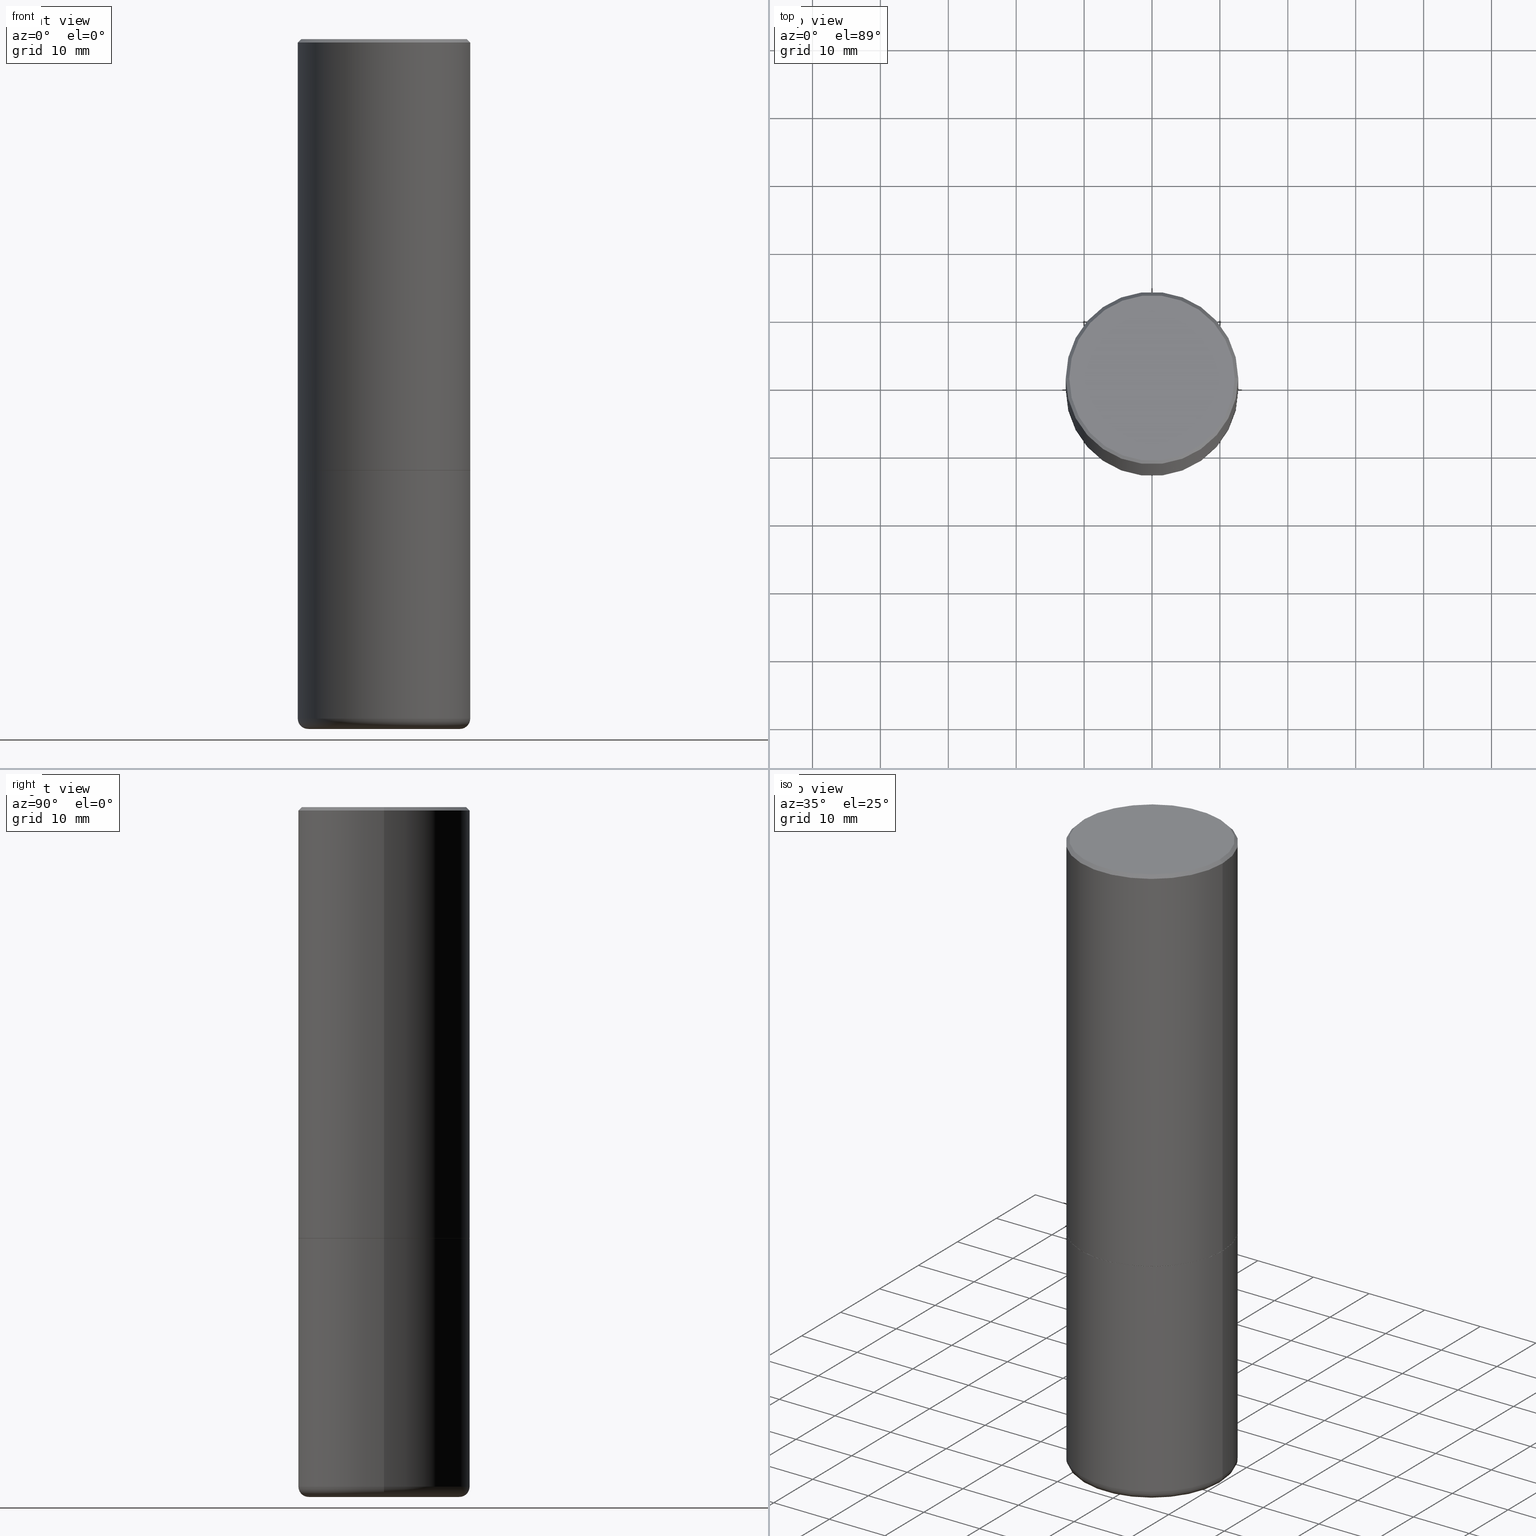
[diagram: canonical four-view strip — front | top / right | iso, engineering-drawing reading convention]
A machine part, canonical four-view strip (front | top / right | iso — engineering-drawing reading convention). The complete STEP part file that produces these views, byte-faithful:
ISO-10303-21;
HEADER;
FILE_DESCRIPTION (( 'STEP AP203' ),
    '1' );
FILE_NAME ('32590.STEP',
    '2022-04-26T19:39:03',
    ( '' ),
    ( '' ),
    'SwSTEP 2.0',
    'SolidWorks 2022',
    '' );
FILE_SCHEMA (( 'CONFIG_CONTROL_DESIGN' ));
ENDSEC;

DATA;
#1 = DIRECTION ( 'NONE',  ( 1.000000000000000000, -6.982962677686266711E-15, 0.000000000000000000 ) ) ;
#2 = CC_DESIGN_DATE_AND_TIME_ASSIGNMENT ( #328, #227, ( #143 ) ) ;
#3 = ADVANCED_FACE ( 'NONE', ( #367 ), #380, .T. ) ;
#4 = CARTESIAN_POINT ( 'NONE',  ( 0.000000000000000000, 0.000000000000000000, 0.000000000000000000 ) ) ;
#5 =( CONVERSION_BASED_UNIT ( 'INCH', #307 ) LENGTH_UNIT ( ) NAMED_UNIT ( #154 ) );
#6 = ORIENTED_EDGE ( 'NONE', *, *, #374, .F. ) ;
#7 = CONICAL_SURFACE ( 'NONE', #241, 2255.510300424736670, 1.553343034274962120 ) ;
#8 = CIRCLE ( 'NONE', #415, 0.4999999999999997224 ) ;
#9 = ORIENTED_EDGE ( 'NONE', *, *, #249, .F. ) ;
#10 =( NAMED_UNIT ( * ) SI_UNIT ( $, .STERADIAN. ) SOLID_ANGLE_UNIT ( ) );
#11 = DIRECTION ( 'NONE',  ( 1.000000000000000000, -6.982962677686266711E-15, 0.000000000000000000 ) ) ;
#12 = DIRECTION ( 'NONE',  ( 0.000000000000000000, 0.000000000000000000, 1.000000000000000000 ) ) ;
#13 = LINE ( 'NONE', #352, #376 ) ;
#14 = ORIENTED_EDGE ( 'NONE', *, *, #374, .T. ) ;
#15 = EDGE_CURVE ( 'NONE', #224, #184, #84, .T. ) ;
#16 = AXIS2_PLACEMENT_3D ( 'NONE', #434, #58, #195 ) ;
#17 = ORIENTED_EDGE ( 'NONE', *, *, #19, .T. ) ;
#18 = EDGE_LOOP ( 'NONE', ( #335, #89, #325, #35 ) ) ;
#19 = EDGE_CURVE ( 'NONE', #321, #160, #171, .T. ) ;
#20 = EDGE_LOOP ( 'NONE', ( #371, #120, #74, #139 ) ) ;
#21 = DIRECTION ( 'NONE',  ( -2.445468806185136597E-29, 3.491481338843145583E-15, 1.000000000000000000 ) ) ;
#22 = DIRECTION ( 'NONE',  ( 1.000000000000000000, -6.982962677686265922E-15, 4.876176775795935793E-29 ) ) ;
#23 = VERTEX_POINT ( 'NONE', #308 ) ;
#24 = DIRECTION ( 'NONE',  ( -1.000000000000000000, 6.982962677686265922E-15, 0.000000000000000000 ) ) ;
#25 = APPROVAL_ROLE ( '' ) ;
#26 = ORIENTED_EDGE ( 'NONE', *, *, #416, .T. ) ;
#27 = DIRECTION ( 'NONE',  ( 0.9998476951563914916, -6.920387862090555568E-15, -0.01745240643727472007 ) ) ;
#28 = CIRCLE ( 'NONE', #129, 0.05999999999999976880 ) ;
#29 = EDGE_CURVE ( 'NONE', #184, #224, #90, .T. ) ;
#30 = ADVANCED_FACE ( 'NONE', ( #239 ), #370, .T. ) ;
#31 = CARTESIAN_POINT ( 'NONE',  ( -0.4989999999999999991, -5.177796641316741831E-15, -2.499999999999999556 ) ) ;
#32 = PERSON_AND_ORGANIZATION ( #296, #54 ) ;
#33 = ORIENTED_EDGE ( 'NONE', *, *, #96, .F. ) ;
#34 = ADVANCED_FACE ( 'NONE', ( #141 ), #38, .T. ) ;
#35 = ORIENTED_EDGE ( 'NONE', *, *, #51, .F. ) ;
#36 = ORIENTED_EDGE ( 'NONE', *, *, #378, .F. ) ;
#37 = CARTESIAN_POINT ( 'NONE',  ( -3.131554243005659264E-46, 4.471029511141341874E-32, 1.280553747030123384E-17 ) ) ;
#38 = CONICAL_SURFACE ( 'NONE', #162, 0.4989999999999999991, 0.7853981633978239785 ) ;
#39 = APPROVAL_PERSON_ORGANIZATION ( #290, #204, #25 ) ;
#40 = CIRCLE ( 'NONE', #207, 0.4989999999999999991 ) ;
#41 = ORIENTED_EDGE ( 'NONE', *, *, #172, .F. ) ;
#42 = DIRECTION ( 'NONE',  ( 1.000000000000000000, -6.982962677686265922E-15, 0.000000000000000000 ) ) ;
#43 = CARTESIAN_POINT ( 'NONE',  ( 6.111226546656657010E-29, -8.725211865769021935E-15, -2.499000000000000110 ) ) ;
#44 = FACE_OUTER_BOUND ( 'NONE', #389, .T. ) ;
#45 = CARTESIAN_POINT ( 'NONE',  ( 9.781852877335900786E-29, -1.396589344920142388E-14, -3.999990861709382894 ) ) ;
#46 = APPROVAL_ROLE ( '' ) ;
#47 = LOCAL_TIME ( 15, 39, 3.000000000000000000, #436 ) ;
#48 = DIRECTION ( 'NONE',  ( -1.000000000000000000, 6.982962677686266711E-15, 0.000000000000000000 ) ) ;
#49 = FACE_OUTER_BOUND ( 'NONE', #271, .T. ) ;
#50 = APPROVAL_DATE_TIME ( #182, #291 ) ;
#51 = EDGE_CURVE ( 'NONE', #52, #240, #373, .T. ) ;
#52 = VERTEX_POINT ( 'NONE', #343 ) ;
#53 = AXIS2_PLACEMENT_3D ( 'NONE', #419, #115, #382 ) ;
#54 = ORGANIZATION ( 'UNSPECIFIED', 'UNSPECIFIED', '' ) ;
#55 = CIRCLE ( 'NONE', #151, 0.4989999999999999991 ) ;
#56 = ORIENTED_EDGE ( 'NONE', *, *, #128, .F. ) ;
#57 = ADVANCED_FACE ( 'NONE', ( #44 ), #176, .F. ) ;
#58 = DIRECTION ( 'NONE',  ( -2.445468806185136597E-29, 3.491481338843145583E-15, 1.000000000000000000 ) ) ;
#59 = DATE_AND_TIME ( #193, #293 ) ;
#60 = VERTEX_POINT ( 'NONE', #202 ) ;
#61 = CYLINDRICAL_SURFACE ( 'NONE', #16, 0.4999999999999998335 ) ;
#62 = CC_DESIGN_PERSON_AND_ORGANIZATION_ASSIGNMENT ( #32, #133, ( #364 ) ) ;
#63 = EDGE_LOOP ( 'NONE', ( #41, #173 ) ) ;
#64 = CARTESIAN_POINT ( 'NONE',  ( 3.351822085289405181E-15, 0.4799999999999996492, -1.669508273909558064E-15 ) ) ;
#65 = DIRECTION ( 'NONE',  ( 2.438088387897960049E-29, -3.491481338843145188E-15, -1.000000000000000000 ) ) ;
#66 = AXIS2_PLACEMENT_3D ( 'NONE', #410, #345, #48 ) ;
#67 = CALENDAR_DATE ( 2022, 26, 4 ) ;
#68 = CARTESIAN_POINT ( 'NONE',  ( -0.4389528556137630710, -1.090070204118670657E-14, -3.999990861709382894 ) ) ;
#69 = DIRECTION ( 'NONE',  ( 1.000000000000000000, -6.982962677686265922E-15, 4.883557194083112340E-29 ) ) ;
#70 =( LENGTH_UNIT ( ) NAMED_UNIT ( * ) SI_UNIT ( $, .METRE. ) );
#71 = CONICAL_SURFACE ( 'NONE', #317, 0.4989999999999999991, 0.7853981633978239785 ) ;
#72 = VECTOR ( 'NONE', #77, 39.37007874015748854 ) ;
#73 = AXIS2_PLACEMENT_3D ( 'NONE', #401, #98, #229 ) ;
#74 = ORIENTED_EDGE ( 'NONE', *, *, #51, .T. ) ;
#75 = DIRECTION ( 'NONE',  ( 1.000000000000000000, -6.982962677686265922E-15, 0.000000000000000000 ) ) ;
#76 = CARTESIAN_POINT ( 'NONE',  ( 6.113672015462840371E-29, -8.728703347107863365E-15, -2.499999999999999556 ) ) ;
#77 = DIRECTION ( 'NONE',  ( 0.7071067811868130271, -2.468850131085038979E-15, 0.7071067811862817853 ) ) ;
#78 = PERSON_AND_ORGANIZATION ( #296, #54 ) ;
#79 = APPROVAL_PERSON_ORGANIZATION ( #78, #291, #46 ) ;
#80 = COORDINATED_UNIVERSAL_TIME_OFFSET ( 5, 0, .BEHIND. ) ;
#81 = ADVANCED_FACE ( 'NONE', ( #49 ), #71, .T. ) ;
#82 = DIRECTION ( 'NONE',  ( -2.445468806185136877E-29, 3.491481338843145188E-15, 1.000000000000000000 ) ) ;
#83 = ORIENTED_EDGE ( 'NONE', *, *, #187, .F. ) ;
#84 = CIRCLE ( 'NONE', #354, 0.5000000000000000000 ) ;
#85 = LOCAL_TIME ( 15, 39, 3.000000000000000000, #180 ) ;
#86 = CARTESIAN_POINT ( 'NONE',  ( 6.113672015462840371E-29, -8.728703347107863365E-15, -2.499999999999999556 ) ) ;
#87 = EDGE_CURVE ( 'NONE', #244, #340, #28, .T. ) ;
#88 = CARTESIAN_POINT ( 'NONE',  ( 6.111226546656657010E-29, -8.725211865769021935E-15, -2.499000000000000110 ) ) ;
#89 = ORIENTED_EDGE ( 'NONE', *, *, #87, .T. ) ;
#90 = CIRCLE ( 'NONE', #332, 0.5000000000000000000 ) ;
#91 = CARTESIAN_POINT ( 'NONE',  ( -0.5000000000000000000, -7.689856232274430126E-15, -2.500000000000000000 ) ) ;
#92 = CONICAL_SURFACE ( 'NONE', #351, 0.4999999999999997224, 0.7853981633974467247 ) ;
#93 = PERSON_AND_ORGANIZATION_ROLE ( 'creator' ) ;
#94 = DESIGN_CONTEXT ( 'detailed design', #102, 'design' ) ;
#95 = EDGE_CURVE ( 'NONE', #268, #418, #40, .T. ) ;
#96 = EDGE_CURVE ( 'NONE', #60, #395, #13, .T. ) ;
#97 = ORIENTED_EDGE ( 'NONE', *, *, #390, .T. ) ;
#98 = DIRECTION ( 'NONE',  ( -2.445468806185136597E-29, 3.491481338843145583E-15, 1.000000000000000000 ) ) ;
#99 = PERSON_AND_ORGANIZATION ( #296, #54 ) ;
#100 = FACE_OUTER_BOUND ( 'NONE', #113, .T. ) ;
#101 = APPROVAL_STATUS ( 'not_yet_approved' ) ;
#102 = APPLICATION_CONTEXT ( 'configuration controlled 3d designs of mechanical parts and assemblies' ) ;
#103 = DIRECTION ( 'NONE',  ( 1.000000000000000000, -6.982962677686265133E-15, 0.000000000000000000 ) ) ;
#104 = AXIS2_PLACEMENT_3D ( 'NONE', #181, #420, #69 ) ;
#105 = ORIENTED_EDGE ( 'NONE', *, *, #150, .T. ) ;
#106 = ORIENTED_EDGE ( 'NONE', *, *, #114, .T. ) ;
#107 = LINE ( 'NONE', #116, #213 ) ;
#108 = DIRECTION ( 'NONE',  ( 1.000000000000000000, -6.982962677686269077E-15, 0.000000000000000000 ) ) ;
#109 = ORIENTED_EDGE ( 'NONE', *, *, #315, .T. ) ;
#110 = DIRECTION ( 'NONE',  ( 1.000000000000000000, -6.982962677686266711E-15, 0.000000000000000000 ) ) ;
#111 = VECTOR ( 'NONE', #288, 39.37007874015747433 ) ;
#112 = CC_DESIGN_PERSON_AND_ORGANIZATION_ASSIGNMENT ( #263, #118, ( #364 ) ) ;
#113 = EDGE_LOOP ( 'NONE', ( #336, #236, #97, #256 ) ) ;
#114 = EDGE_CURVE ( 'NONE', #413, #60, #391, .T. ) ;
#115 = DIRECTION ( 'NONE',  ( 2.438088387897960049E-29, -3.491481338843145188E-15, -1.000000000000000000 ) ) ;
#116 = CARTESIAN_POINT ( 'NONE',  ( 0.4999999999999998335, -3.491481338843132566E-15, 2.438088387897967336E-29 ) ) ;
#117 = CC_DESIGN_PERSON_AND_ORGANIZATION_ASSIGNMENT ( #347, #314, ( #179 ) ) ;
#118 = PERSON_AND_ORGANIZATION_ROLE ( 'design_supplier' ) ;
#119 = ORIENTED_EDGE ( 'NONE', *, *, #411, .T. ) ;
#120 = ORIENTED_EDGE ( 'NONE', *, *, #378, .T. ) ;
#121 = ORIENTED_EDGE ( 'NONE', *, *, #150, .F. ) ;
#122 = AXIS2_PLACEMENT_3D ( 'NONE', #88, #403, #103 ) ;
#123 = CC_DESIGN_APPROVAL ( #158, ( #143 ) ) ;
#124 = DIRECTION ( 'NONE',  ( -0.7071067811865464625, 2.468850131082245228E-15, -0.7071067811865486830 ) ) ;
#125 = DIRECTION ( 'NONE',  ( 1.000000000000000000, -6.982962677686266711E-15, 0.000000000000000000 ) ) ;
#126 = PLANE ( 'NONE',  #399 ) ;
#127 = APPLICATION_PROTOCOL_DEFINITION ( 'international standard', 'config_control_design', 1994, #102 ) ;
#128 = EDGE_CURVE ( 'NONE', #340, #224, #148, .T. ) ;
#129 = AXIS2_PLACEMENT_3D ( 'NONE', #183, #427, #153 ) ;
#130 = CIRCLE ( 'NONE', #122, 0.5000000000000000000 ) ;
#131 = CARTESIAN_POINT ( 'NONE',  ( 4.890937612370301184E-31, -6.982962677686329819E-17, -0.02000000000000011144 ) ) ;
#132 = CARTESIAN_POINT ( 'NONE',  ( 0.5000000000000000000, -1.222018468595099830E-14, -2.500000000000000000 ) ) ;
#133 = PERSON_AND_ORGANIZATION_ROLE ( 'creator' ) ;
#134 = ADVANCED_FACE ( 'NONE', ( #215 ), #7, .F. ) ;
#135 = CC_DESIGN_SECURITY_CLASSIFICATION ( #179, ( #364 ) ) ;
#136 = ADVANCED_FACE ( 'NONE', ( #254 ), #126, .F. ) ;
#137 = DIRECTION ( 'NONE',  ( -1.000000000000000000, 6.982962677686265922E-15, 0.000000000000000000 ) ) ;
#138 = CARTESIAN_POINT ( 'NONE',  ( 6.113672015462842613E-29, -8.728703347107864943E-15, -2.500000000000000000 ) ) ;
#139 = ORIENTED_EDGE ( 'NONE', *, *, #294, .F. ) ;
#140 = DIRECTION ( 'NONE',  ( -2.445468806185136877E-29, 3.491481338843145188E-15, 1.000000000000000000 ) ) ;
#141 = FACE_OUTER_BOUND ( 'NONE', #155, .T. ) ;
#142 = DIRECTION ( 'NONE',  ( -2.445468806185136597E-29, 3.491481338843145583E-15, 1.000000000000000000 ) ) ;
#143 = PRODUCT_DEFINITION ( 'UNKNOWN', '', #364, #94 ) ;
#144 = ORIENTED_EDGE ( 'NONE', *, *, #253, .T. ) ;
#145 = AXIS2_PLACEMENT_3D ( 'NONE', #203, #372, #42 ) ;
#146 = DIRECTION ( 'NONE',  ( -2.445468806185136597E-29, 3.491481338843145583E-15, 1.000000000000000000 ) ) ;
#147 = PRODUCT ( '32590', '32590', '', ( #190 ) ) ;
#148 = LINE ( 'NONE', #386, #292 ) ;
#149 = CALENDAR_DATE ( 2022, 26, 4 ) ;
#150 = EDGE_CURVE ( 'NONE', #425, #52, #198, .T. ) ;
#151 = AXIS2_PLACEMENT_3D ( 'NONE', #201, #159, #255 ) ;
#152 = ORIENTED_EDGE ( 'NONE', *, *, #294, .T. ) ;
#153 = DIRECTION ( 'NONE',  ( -1.000000000000000000, 7.105427357600985293E-15, 0.000000000000000000 ) ) ;
#154 = DIMENSIONAL_EXPONENTS ( 1.000000000000000000, 0.000000000000000000, 0.000000000000000000, 0.000000000000000000, 0.000000000000000000, 0.000000000000000000, 0.000000000000000000 ) ;
#155 = EDGE_LOOP ( 'NONE', ( #316, #341, #26, #9 ) ) ;
#156 = PRODUCT_DEFINITION_SHAPE ( 'NONE', 'NONE',  #143 ) ;
#157 = DIRECTION ( 'NONE',  ( 1.000000000000000000, -6.982962677686265922E-15, 0.000000000000000000 ) ) ;
#158 = APPROVAL ( #101, 'UNSPECIFIED' ) ;
#159 = DIRECTION ( 'NONE',  ( -2.445468806185136597E-29, 3.491481338843145583E-15, 1.000000000000000000 ) ) ;
#160 = VERTEX_POINT ( 'NONE', #394 ) ;
#161 = DIRECTION ( 'NONE',  ( -2.438088387897960049E-29, 3.491481338843145188E-15, 1.000000000000000000 ) ) ;
#162 = AXIS2_PLACEMENT_3D ( 'NONE', #76, #270, #110 ) ;
#163 = AXIS2_PLACEMENT_3D ( 'NONE', #440, #21, #157 ) ;
#164 = ORIENTED_EDGE ( 'NONE', *, *, #390, .F. ) ;
#165 = DIRECTION ( 'NONE',  ( -2.445468806185136597E-29, 3.491481338843145583E-15, 1.000000000000000000 ) ) ;
#166 = DIRECTION ( 'NONE',  ( 1.000000000000000000, -6.982962677686265922E-15, 0.000000000000000000 ) ) ;
#167 = ORIENTED_EDGE ( 'NONE', *, *, #421, .F. ) ;
#168 = CIRCLE ( 'NONE', #318, 0.4799999999999996492 ) ;
#169 = EDGE_LOOP ( 'NONE', ( #319, #106 ) ) ;
#170 = DIRECTION ( 'NONE',  ( -2.445468806185136877E-29, 3.491481338843145188E-15, 1.000000000000000000 ) ) ;
#171 = CIRCLE ( 'NONE', #417, 0.5000000000000000000 ) ;
#172 = EDGE_CURVE ( 'NONE', #418, #268, #55, .T. ) ;
#173 = ORIENTED_EDGE ( 'NONE', *, *, #95, .F. ) ;
#174 = DIRECTION ( 'NONE',  ( 1.000000000000000000, -6.982962677686265133E-15, 0.000000000000000000 ) ) ;
#175 = DIRECTION ( 'NONE',  ( -2.445468806185136597E-29, 3.491481338843145583E-15, 1.000000000000000000 ) ) ;
#176 = PLANE ( 'NONE',  #53 ) ;
#177 = LINE ( 'NONE', #379, #72 ) ;
#178 = LOCAL_TIME ( 15, 39, 3.000000000000000000, #80 ) ;
#179 = SECURITY_CLASSIFICATION ( '', '', #211 ) ;
#180 = COORDINATED_UNIVERSAL_TIME_OFFSET ( 5, 0, .BEHIND. ) ;
#181 = CARTESIAN_POINT ( 'NONE',  ( 9.635147096369438236E-29, -1.375643647504199401E-14, -3.939999999999999947 ) ) ;
#182 = DATE_AND_TIME ( #385, #178 ) ;
#183 = CARTESIAN_POINT ( 'NONE',  ( -0.4400000000000000022, -1.063004843769755357E-14, -3.939999999999999947 ) ) ;
#184 = VERTEX_POINT ( 'NONE', #132 ) ;
#185 = AXIS2_PLACEMENT_3D ( 'NONE', #248, #393, #219 ) ;
#186 = AXIS2_PLACEMENT_3D ( 'NONE', #362, #333, #166 ) ;
#187 = EDGE_CURVE ( 'NONE', #413, #23, #396, .T. ) ;
#188 = ORIENTED_EDGE ( 'NONE', *, *, #375, .F. ) ;
#189 = CARTESIAN_POINT ( 'NONE',  ( 0.000000000000000000, 0.000000000000000000, 0.000000000000000000 ) ) ;
#190 = MECHANICAL_CONTEXT ( 'NONE', #266, 'mechanical' ) ;
#191 = CONICAL_SURFACE ( 'NONE', #66, 0.4999999999999997224, 0.7853981633974467247 ) ;
#192 = FACE_OUTER_BOUND ( 'NONE', #18, .T. ) ;
#193 = CALENDAR_DATE ( 2022, 26, 4 ) ;
#194 = EDGE_LOOP ( 'NONE', ( #109, #205, #228, #6 ) ) ;
#195 = DIRECTION ( 'NONE',  ( 1.000000000000000000, -6.982962677686267499E-15, 4.876176775795936353E-29 ) ) ;
#196 = PERSON_AND_ORGANIZATION ( #296, #54 ) ;
#197 = ORIENTED_EDGE ( 'NONE', *, *, #238, .F. ) ;
#198 = LINE ( 'NONE', #402, #199 ) ;
#199 = VECTOR ( 'NONE', #27, 39.37007874015747433 ) ;
#200 = CIRCLE ( 'NONE', #163, 0.4999999999999997780 ) ;
#201 = CARTESIAN_POINT ( 'NONE',  ( 6.113672015462840371E-29, -8.728703347107863365E-15, -2.499999999999999556 ) ) ;
#202 = CARTESIAN_POINT ( 'NONE',  ( -0.4799999999999996492, 3.386736898677836830E-15, 1.280553747027767124E-17 ) ) ;
#203 = CARTESIAN_POINT ( 'NONE',  ( 9.781852877335900786E-29, -1.396589344920142388E-14, -3.999990861709382894 ) ) ;
#204 = APPROVAL ( #358, 'UNSPECIFIED' ) ;
#205 = ORIENTED_EDGE ( 'NONE', *, *, #128, .T. ) ;
#206 = DIRECTION ( 'NONE',  ( -2.445468806185136597E-29, 3.491481338843145583E-15, 1.000000000000000000 ) ) ;
#207 = AXIS2_PLACEMENT_3D ( 'NONE', #349, #422, #217 ) ;
#208 = DIRECTION ( 'NONE',  ( -6.982962677686266711E-15, -1.000000000000000000, 3.491481338843145583E-15 ) ) ;
#209 = DIRECTION ( 'NONE',  ( 1.000000000000000000, -6.982962677686262766E-15, 0.000000000000000000 ) ) ;
#210 = CARTESIAN_POINT ( 'NONE',  ( 1.060414152722686595E-27, -1.513990371217243745E-13, -43.36240765127170960 ) ) ;
#211 = SECURITY_CLASSIFICATION_LEVEL ( 'unclassified' ) ;
#212 = CARTESIAN_POINT ( 'NONE',  ( 4.890937612370301184E-31, -6.982962677686329819E-17, -0.02000000000000011144 ) ) ;
#213 = VECTOR ( 'NONE', #140, 39.37007874015748143 ) ;
#214 = DATE_TIME_ROLE ( 'classification_date' ) ;
#215 = FACE_OUTER_BOUND ( 'NONE', #306, .T. ) ;
#216 = ORIENTED_EDGE ( 'NONE', *, *, #114, .F. ) ;
#217 = DIRECTION ( 'NONE',  ( 1.000000000000000000, -6.982962677686266711E-15, 0.000000000000000000 ) ) ;
#218 = DIRECTION ( 'NONE',  ( 1.000000000000000000, 0.000000000000000000, 0.000000000000000000 ) ) ;
#219 = DIRECTION ( 'NONE',  ( 1.000000000000000000, -6.982962677686267499E-15, 4.876036955247132767E-29 ) ) ;
#220 = EDGE_CURVE ( 'NONE', #425, #244, #234, .T. ) ;
#221 = DIRECTION ( 'NONE',  ( 2.445468806185136597E-29, -3.491481338843145583E-15, -1.000000000000000000 ) ) ;
#222 = UNCERTAINTY_MEASURE_WITH_UNIT (LENGTH_MEASURE( 1.000000000000000082E-05 ), #5, 'distance_accuracy_value', 'NONE');
#223 =( GEOMETRIC_REPRESENTATION_CONTEXT ( 3 ) GLOBAL_UNCERTAINTY_ASSIGNED_CONTEXT ( ( #222 ) ) GLOBAL_UNIT_ASSIGNED_CONTEXT ( ( #5, #342, #10 ) ) REPRESENTATION_CONTEXT ( 'NONE', 'WORKASPACE' ) );
#224 = VERTEX_POINT ( 'NONE', #91 ) ;
#225 = CLOSED_SHELL ( 'NONE', ( #81, #289, #250, #431, #258, #34, #136, #280 ) ) ;
#226 = CARTESIAN_POINT ( 'NONE',  ( 4.890937612370301184E-31, -6.982962677686329819E-17, -0.02000000000000011144 ) ) ;
#227 = DATE_TIME_ROLE ( 'creation_date' ) ;
#228 = ORIENTED_EDGE ( 'NONE', *, *, #29, .F. ) ;
#229 = DIRECTION ( 'NONE',  ( 1.000000000000000000, -6.982962677686265922E-15, 4.883557194083112340E-29 ) ) ;
#230 = MANIFOLD_SOLID_BREP ( 'Body-Move/Copy2[1]', #273 ) ;
#231 = CYLINDRICAL_SURFACE ( 'NONE', #275, 0.4999999999999998335 ) ;
#232 = COORDINATED_UNIVERSAL_TIME_OFFSET ( 5, 0, .BEHIND. ) ;
#233 = AXIS2_PLACEMENT_3D ( 'NONE', #189, #12, #218 ) ;
#234 = LINE ( 'NONE', #300, #111 ) ;
#235 = ORIENTED_EDGE ( 'NONE', *, *, #15, .F. ) ;
#236 = ORIENTED_EDGE ( 'NONE', *, *, #249, .T. ) ;
#237 = FACE_OUTER_BOUND ( 'NONE', #20, .T. ) ;
#238 = EDGE_CURVE ( 'NONE', #23, #395, #424, .T. ) ;
#239 = FACE_OUTER_BOUND ( 'NONE', #437, .T. ) ;
#240 = VERTEX_POINT ( 'NONE', #324 ) ;
#241 = AXIS2_PLACEMENT_3D ( 'NONE', #348, #327, #24 ) ;
#242 = DIRECTION ( 'NONE',  ( -2.445468806185136597E-29, 3.491481338843145583E-15, 1.000000000000000000 ) ) ;
#243 = CARTESIAN_POINT ( 'NONE',  ( 0.4989999999999999991, -1.221320172327330913E-14, -2.499999999999999556 ) ) ;
#244 = VERTEX_POINT ( 'NONE', #68 ) ;
#245 = LINE ( 'NONE', #337, #428 ) ;
#246 = APPROVAL_PERSON_ORGANIZATION ( #99, #158, #299 ) ;
#247 = DATE_AND_TIME ( #149, #85 ) ;
#248 = CARTESIAN_POINT ( 'NONE',  ( -3.131554243005659264E-46, 4.471029511141341874E-32, 1.280553747030123384E-17 ) ) ;
#249 = EDGE_CURVE ( 'NONE', #160, #321, #130, .T. ) ;
#250 = ADVANCED_FACE ( 'NONE', ( #432 ), #92, .T. ) ;
#251 = VECTOR ( 'NONE', #285, 39.37007874015748143 ) ;
#252 = ADVANCED_BREP_SHAPE_REPRESENTATION ( '32590', ( #230, #388, #233 ), #223 ) ;
#253 = EDGE_CURVE ( 'NONE', #160, #395, #330, .T. ) ;
#254 = FACE_OUTER_BOUND ( 'NONE', #63, .T. ) ;
#255 = DIRECTION ( 'NONE',  ( 1.000000000000000000, -6.982962677686266711E-15, 0.000000000000000000 ) ) ;
#256 = ORIENTED_EDGE ( 'NONE', *, *, #411, .F. ) ;
#257 = PLANE ( 'NONE',  #320 ) ;
#258 = ADVANCED_FACE ( 'NONE', ( #100 ), #61, .T. ) ;
#259 = ADVANCED_FACE ( 'NONE', ( #192 ), #301, .T. ) ;
#260 = CARTESIAN_POINT ( 'NONE',  ( 0.4999999999999997224, -3.500078625662627502E-15, -0.02000000000000011144 ) ) ;
#261 = PERSON_AND_ORGANIZATION ( #296, #54 ) ;
#262 = CARTESIAN_POINT ( 'NONE',  ( 6.113672015462842613E-29, -8.728703347107864943E-15, -2.500000000000000000 ) ) ;
#263 = PERSON_AND_ORGANIZATION ( #296, #54 ) ;
#264 = CC_DESIGN_APPROVAL ( #291, ( #179 ) ) ;
#265 = CARTESIAN_POINT ( 'NONE',  ( 0.5000000000000000000, -1.221669320461215371E-14, -2.499000000000000110 ) ) ;
#266 = APPLICATION_CONTEXT ( 'configuration controlled 3d designs of mechanical parts and assemblies' ) ;
#267 = DIRECTION ( 'NONE',  ( -2.445468806185136597E-29, 3.491481338843145583E-15, 1.000000000000000000 ) ) ;
#268 = VERTEX_POINT ( 'NONE', #31 ) ;
#269 = CARTESIAN_POINT ( 'NONE',  ( 9.761990578139870548E-29, -1.394075329656997142E-14, -3.992328911114222390 ) ) ;
#270 = DIRECTION ( 'NONE',  ( -2.445468806185136597E-29, 3.491481338843145583E-15, 1.000000000000000000 ) ) ;
#271 = EDGE_LOOP ( 'NONE', ( #409, #406, #400, #350 ) ) ;
#272 = CARTESIAN_POINT ( 'NONE',  ( -0.4989999999999999991, -5.183095095664963444E-15, -2.499999999999999556 ) ) ;
#273 = CLOSED_SHELL ( 'NONE', ( #3, #259, #365, #134, #331, #30, #57 ) ) ;
#274 = ORIENTED_EDGE ( 'NONE', *, *, #238, .T. ) ;
#275 = AXIS2_PLACEMENT_3D ( 'NONE', #430, #366, #322 ) ;
#276 = FACE_OUTER_BOUND ( 'NONE', #356, .T. ) ;
#277 = DIRECTION ( 'NONE',  ( 1.000000000000000000, -6.982962677686267499E-15, 4.876176775795936353E-29 ) ) ;
#278 = LINE ( 'NONE', #272, #284 ) ;
#279 = AXIS2_PLACEMENT_3D ( 'NONE', #302, #305, #311 ) ;
#280 = ADVANCED_FACE ( 'NONE', ( #360 ), #257, .F. ) ;
#281 = ORIENTED_EDGE ( 'NONE', *, *, #220, .T. ) ;
#282 = AXIS2_PLACEMENT_3D ( 'NONE', #131, #165, #125 ) ;
#283 = EDGE_LOOP ( 'NONE', ( #17, #144, #197, #164 ) ) ;
#284 = VECTOR ( 'NONE', #304, 39.37007874015748854 ) ;
#285 = DIRECTION ( 'NONE',  ( 0.7071067811865464625, -7.319954787623252890E-15, -0.7071067811865486830 ) ) ;
#286 = DIRECTION ( 'NONE',  ( -1.000000000000000000, 6.982962677686266711E-15, 0.000000000000000000 ) ) ;
#287 = ORIENTED_EDGE ( 'NONE', *, *, #29, .T. ) ;
#288 = DIRECTION ( 'NONE',  ( -0.9998476951563914916, 6.920964387254067043E-15, -0.01745240643727472007 ) ) ;
#289 = ADVANCED_FACE ( 'NONE', ( #438 ), #231, .T. ) ;
#290 = PERSON_AND_ORGANIZATION ( #296, #54 ) ;
#291 = APPROVAL ( #384, 'UNSPECIFIED' ) ;
#292 = VECTOR ( 'NONE', #82, 39.37007874015748143 ) ;
#293 = LOCAL_TIME ( 15, 39, 3.000000000000000000, #232 ) ;
#294 = EDGE_CURVE ( 'NONE', #340, #240, #397, .T. ) ;
#295 = AXIS2_PLACEMENT_3D ( 'NONE', #4, #146, #277 ) ;
#296 = PERSON ( 'UNSPECIFIED', 'UNSPECIFIED', 'UNSPECIFIED', ('UNSPECIFIED'), ('UNSPECIFIED'), ('UNSPECIFIED') ) ;
#297 = EDGE_LOOP ( 'NONE', ( #329, #105, #36 ) ) ;
#298 = DIRECTION ( 'NONE',  ( -1.000000000000000000, 6.982962677686265922E-15, -4.876176775795935793E-29 ) ) ;
#299 = APPROVAL_ROLE ( '' ) ;
#300 = CARTESIAN_POINT ( 'NONE',  ( -1.611404890591303157E-18, -1.393914189167928133E-14, -3.992328911114222390 ) ) ;
#301 = TOROIDAL_SURFACE ( 'NONE', #73, 0.4400000000000000022, 0.05999999999999975492 ) ;
#302 = CARTESIAN_POINT ( 'NONE',  ( 0.000000000000000000, 0.000000000000000000, 0.000000000000000000 ) ) ;
#303 = EDGE_LOOP ( 'NONE', ( #216, #387, #274, #33 ) ) ;
#304 = DIRECTION ( 'NONE',  ( -0.7071067811868130271, 7.493145998871311837E-15, 0.7071067811862817853 ) ) ;
#305 = DIRECTION ( 'NONE',  ( -2.445468806185136597E-29, 3.491481338843145583E-15, 1.000000000000000000 ) ) ;
#306 = EDGE_LOOP ( 'NONE', ( #121, #281, #167 ) ) ;
#307 = LENGTH_MEASURE_WITH_UNIT ( LENGTH_MEASURE( 0.02539999999999999897 ), #70 );
#308 = CARTESIAN_POINT ( 'NONE',  ( 0.4999999999999997224, -3.500078625662627502E-15, -0.02000000000000011144 ) ) ;
#309 = CC_DESIGN_PERSON_AND_ORGANIZATION_ASSIGNMENT ( #261, #93, ( #143 ) ) ;
#310 = AXIS2_PLACEMENT_3D ( 'NONE', #377, #208, #209 ) ;
#311 = DIRECTION ( 'NONE',  ( 1.000000000000000000, -6.982962677686267499E-15, 4.876176775795936353E-29 ) ) ;
#312 = APPLICATION_PROTOCOL_DEFINITION ( 'international standard', 'config_control_design', 1994, #266 ) ;
#313 = FACE_OUTER_BOUND ( 'NONE', #297, .T. ) ;
#314 = PERSON_AND_ORGANIZATION_ROLE ( 'classification_officer' ) ;
#315 = EDGE_CURVE ( 'NONE', #240, #340, #200, .T. ) ;
#316 = ORIENTED_EDGE ( 'NONE', *, *, #404, .F. ) ;
#317 = AXIS2_PLACEMENT_3D ( 'NONE', #86, #429, #11 ) ;
#318 = AXIS2_PLACEMENT_3D ( 'NONE', #37, #142, #369 ) ;
#319 = ORIENTED_EDGE ( 'NONE', *, *, #375, .T. ) ;
#320 = AXIS2_PLACEMENT_3D ( 'NONE', #64, #65, #298 ) ;
#321 = VERTEX_POINT ( 'NONE', #265 ) ;
#322 = DIRECTION ( 'NONE',  ( 1.000000000000000000, -6.982962677686267499E-15, 4.876176775795936353E-29 ) ) ;
#323 = CC_DESIGN_APPROVAL ( #204, ( #364 ) ) ;
#324 = CARTESIAN_POINT ( 'NONE',  ( 0.4999999999999997780, -1.724791781388512421E-14, -3.939999999999999947 ) ) ;
#325 = ORIENTED_EDGE ( 'NONE', *, *, #315, .F. ) ;
#326 = PRODUCT_RELATED_PRODUCT_CATEGORY ( 'detail', '', ( #147 ) ) ;
#327 = DIRECTION ( 'NONE',  ( 2.445468806185136597E-29, -3.491481338843145583E-15, -1.000000000000000000 ) ) ;
#328 = DATE_AND_TIME ( #441, #363 ) ;
#329 = ORIENTED_EDGE ( 'NONE', *, *, #220, .F. ) ;
#330 = LINE ( 'NONE', #357, #338 ) ;
#331 = ADVANCED_FACE ( 'NONE', ( #237 ), #435, .T. ) ;
#332 = AXIS2_PLACEMENT_3D ( 'NONE', #408, #242, #108 ) ;
#333 = DIRECTION ( 'NONE',  ( -2.445468806185136597E-29, 3.491481338843145583E-15, 1.000000000000000000 ) ) ;
#334 = DATE_AND_TIME ( #67, #47 ) ;
#335 = ORIENTED_EDGE ( 'NONE', *, *, #421, .T. ) ;
#336 = ORIENTED_EDGE ( 'NONE', *, *, #253, .F. ) ;
#337 = CARTESIAN_POINT ( 'NONE',  ( 0.4999999999999998335, -3.491481338843132566E-15, 2.438088387897967336E-29 ) ) ;
#338 = VECTOR ( 'NONE', #353, 39.37007874015748143 ) ;
#339 = DIRECTION ( 'NONE',  ( 1.000000000000000000, -6.982962677686269077E-15, 0.000000000000000000 ) ) ;
#340 = VERTEX_POINT ( 'NONE', #381 ) ;
#341 = ORIENTED_EDGE ( 'NONE', *, *, #95, .T. ) ;
#342 =( NAMED_UNIT ( * ) PLANE_ANGLE_UNIT ( ) SI_UNIT ( $, .RADIAN. ) );
#343 = CARTESIAN_POINT ( 'NONE',  ( 0.4389528556137630710, -1.697732863625574306E-14, -3.999990861709382894 ) ) ;
#344 = AXIS2_PLACEMENT_3D ( 'NONE', #210, #407, #137 ) ;
#345 = DIRECTION ( 'NONE',  ( 2.445468806185136597E-29, -3.491481338843145583E-15, -1.000000000000000000 ) ) ;
#346 = SHAPE_DEFINITION_REPRESENTATION ( #156, #252 ) ;
#347 = PERSON_AND_ORGANIZATION ( #296, #54 ) ;
#348 = CARTESIAN_POINT ( 'NONE',  ( 1.060414152722686595E-27, -1.513990371217243745E-13, -43.36240765127170960 ) ) ;
#349 = CARTESIAN_POINT ( 'NONE',  ( 6.113672015462840371E-29, -8.728703347107863365E-15, -2.499999999999999556 ) ) ;
#350 = ORIENTED_EDGE ( 'NONE', *, *, #416, .F. ) ;
#351 = AXIS2_PLACEMENT_3D ( 'NONE', #226, #221, #286 ) ;
#352 = CARTESIAN_POINT ( 'NONE',  ( -0.4999999999999997224, 3.421651712066268085E-15, -0.02000000000000011144 ) ) ;
#353 = DIRECTION ( 'NONE',  ( -2.445468806185136877E-29, 3.491481338843145188E-15, 1.000000000000000000 ) ) ;
#354 = AXIS2_PLACEMENT_3D ( 'NONE', #138, #267, #339 ) ;
#355 = CC_DESIGN_DATE_AND_TIME_ASSIGNMENT ( #247, #214, ( #179 ) ) ;
#356 = EDGE_LOOP ( 'NONE', ( #83, #188, #368, #119 ) ) ;
#357 = CARTESIAN_POINT ( 'NONE',  ( -0.4999999999999998335, 3.552713678800499746E-15, -2.459467545127452330E-29 ) ) ;
#358 = APPROVAL_STATUS ( 'not_yet_approved' ) ;
#359 = ORIENTED_EDGE ( 'NONE', *, *, #15, .T. ) ;
#360 = FACE_OUTER_BOUND ( 'NONE', #169, .T. ) ;
#361 = APPROVAL_DATE_TIME ( #334, #204 ) ;
#362 = CARTESIAN_POINT ( 'NONE',  ( 9.635147096369438236E-29, -1.375643647504199401E-14, -3.939999999999999947 ) ) ;
#363 = LOCAL_TIME ( 15, 39, 3.000000000000000000, #398 ) ;
#364 = PRODUCT_DEFINITION_FORMATION_WITH_SPECIFIED_SOURCE ( 'ANY', '', #147, .NOT_KNOWN. ) ;
#365 = ADVANCED_FACE ( 'NONE', ( #313 ), #392, .F. ) ;
#366 = DIRECTION ( 'NONE',  ( -2.445468806185136597E-29, 3.491481338843145583E-15, 1.000000000000000000 ) ) ;
#367 = FACE_OUTER_BOUND ( 'NONE', #194, .T. ) ;
#368 = ORIENTED_EDGE ( 'NONE', *, *, #96, .T. ) ;
#369 = DIRECTION ( 'NONE',  ( 1.000000000000000000, -6.982962677686267499E-15, 4.876036955247132767E-29 ) ) ;
#370 = CYLINDRICAL_SURFACE ( 'NONE', #295, 0.4999999999999998335 ) ;
#371 = ORIENTED_EDGE ( 'NONE', *, *, #87, .F. ) ;
#372 = DIRECTION ( 'NONE',  ( -2.445468806185136597E-29, 3.491481338843145583E-15, 1.000000000000000000 ) ) ;
#373 = CIRCLE ( 'NONE', #310, 0.05999999999999976880 ) ;
#374 = EDGE_CURVE ( 'NONE', #240, #184, #107, .T. ) ;
#375 = EDGE_CURVE ( 'NONE', #60, #413, #168, .T. ) ;
#376 = VECTOR ( 'NONE', #124, 39.37007874015748143 ) ;
#377 = CARTESIAN_POINT ( 'NONE',  ( 0.4400000000000000022, -1.682894005322395074E-14, -3.939999999999999947 ) ) ;
#378 = EDGE_CURVE ( 'NONE', #244, #52, #423, .T. ) ;
#379 = CARTESIAN_POINT ( 'NONE',  ( 0.4989999999999999991, -1.221320172327330913E-14, -2.499999999999999556 ) ) ;
#380 = CYLINDRICAL_SURFACE ( 'NONE', #279, 0.4999999999999998335 ) ;
#381 = CARTESIAN_POINT ( 'NONE',  ( -0.4999999999999997780, -1.020372279624149466E-14, -3.939999999999999947 ) ) ;
#382 = DIRECTION ( 'NONE',  ( -1.000000000000000000, 6.982962677686265922E-15, -4.876176775795935793E-29 ) ) ;
#383 = CARTESIAN_POINT ( 'NONE',  ( -0.4999999999999997224, 3.421651712066268085E-15, -0.02000000000000011144 ) ) ;
#384 = APPROVAL_STATUS ( 'not_yet_approved' ) ;
#385 = CALENDAR_DATE ( 2022, 26, 4 ) ;
#386 = CARTESIAN_POINT ( 'NONE',  ( -0.4999999999999998335, 3.552713678800499746E-15, -2.459467545127452330E-29 ) ) ;
#387 = ORIENTED_EDGE ( 'NONE', *, *, #187, .T. ) ;
#388 = MANIFOLD_SOLID_BREP ( 'Body-Move/Copy2[2]', #225 ) ;
#389 = EDGE_LOOP ( 'NONE', ( #287, #359 ) ) ;
#390 = EDGE_CURVE ( 'NONE', #321, #23, #245, .T. ) ;
#391 = CIRCLE ( 'NONE', #185, 0.4799999999999996492 ) ;
#392 = CONICAL_SURFACE ( 'NONE', #344, 2255.510300424736670, 1.553343034274962120 ) ;
#393 = DIRECTION ( 'NONE',  ( -2.445468806185136597E-29, 3.491481338843145583E-15, 1.000000000000000000 ) ) ;
#394 = CARTESIAN_POINT ( 'NONE',  ( -0.5000000000000000000, -8.448070674724411945E-16, -2.499000000000000110 ) ) ;
#395 = VERTEX_POINT ( 'NONE', #383 ) ;
#396 = LINE ( 'NONE', #260, #251 ) ;
#397 = CIRCLE ( 'NONE', #186, 0.4999999999999997780 ) ;
#398 = COORDINATED_UNIVERSAL_TIME_OFFSET ( 5, 0, .BEHIND. ) ;
#399 = AXIS2_PLACEMENT_3D ( 'NONE', #262, #161, #22 ) ;
#400 = ORIENTED_EDGE ( 'NONE', *, *, #19, .F. ) ;
#401 = CARTESIAN_POINT ( 'NONE',  ( 9.635147096369438236E-29, -1.375643647504199401E-14, -3.939999999999999947 ) ) ;
#402 = CARTESIAN_POINT ( 'NONE',  ( 1.611404890786565683E-18, -1.393914189167928133E-14, -3.992328911114222390 ) ) ;
#403 = DIRECTION ( 'NONE',  ( -2.445468806185136597E-29, 3.491481338843145583E-15, 1.000000000000000000 ) ) ;
#404 = EDGE_CURVE ( 'NONE', #268, #160, #278, .T. ) ;
#405 = AXIS2_PLACEMENT_3D ( 'NONE', #45, #206, #75 ) ;
#406 = ORIENTED_EDGE ( 'NONE', *, *, #404, .T. ) ;
#407 = DIRECTION ( 'NONE',  ( 2.445468806185136597E-29, -3.491481338843145583E-15, -1.000000000000000000 ) ) ;
#408 = CARTESIAN_POINT ( 'NONE',  ( 6.113672015462842613E-29, -8.728703347107864943E-15, -2.500000000000000000 ) ) ;
#409 = ORIENTED_EDGE ( 'NONE', *, *, #172, .T. ) ;
#410 = CARTESIAN_POINT ( 'NONE',  ( 4.890937612370301184E-31, -6.982962677686329819E-17, -0.02000000000000011144 ) ) ;
#411 = EDGE_CURVE ( 'NONE', #395, #23, #8, .T. ) ;
#412 = DIRECTION ( 'NONE',  ( -2.445468806185136597E-29, 3.491481338843145583E-15, 1.000000000000000000 ) ) ;
#413 = VERTEX_POINT ( 'NONE', #414 ) ;
#414 = CARTESIAN_POINT ( 'NONE',  ( 0.4799999999999996492, -3.396558832296480127E-15, 1.280553747032483033E-17 ) ) ;
#415 = AXIS2_PLACEMENT_3D ( 'NONE', #212, #175, #1 ) ;
#416 = EDGE_CURVE ( 'NONE', #418, #321, #177, .T. ) ;
#417 = AXIS2_PLACEMENT_3D ( 'NONE', #43, #412, #174 ) ;
#418 = VERTEX_POINT ( 'NONE', #243 ) ;
#419 = CARTESIAN_POINT ( 'NONE',  ( 3.491481338843194098E-15, 0.4999999999999912292, -2.500000000000001776 ) ) ;
#420 = DIRECTION ( 'NONE',  ( -2.445468806185136597E-29, 3.491481338843145583E-15, 1.000000000000000000 ) ) ;
#421 = EDGE_CURVE ( 'NONE', #52, #244, #442, .T. ) ;
#422 = DIRECTION ( 'NONE',  ( -2.445468806185136597E-29, 3.491481338843145583E-15, 1.000000000000000000 ) ) ;
#423 = CIRCLE ( 'NONE', #145, 0.4389528556137634596 ) ;
#424 = CIRCLE ( 'NONE', #282, 0.4999999999999997224 ) ;
#425 = VERTEX_POINT ( 'NONE', #269 ) ;
#426 = CC_DESIGN_PERSON_AND_ORGANIZATION_ASSIGNMENT ( #196, #433, ( #147 ) ) ;
#427 = DIRECTION ( 'NONE',  ( 7.105427357601001859E-15, 1.000000000000000000, -3.491481338843145583E-15 ) ) ;
#428 = VECTOR ( 'NONE', #170, 39.37007874015748143 ) ;
#429 = DIRECTION ( 'NONE',  ( -2.445468806185136597E-29, 3.491481338843145583E-15, 1.000000000000000000 ) ) ;
#430 = CARTESIAN_POINT ( 'NONE',  ( 0.000000000000000000, 0.000000000000000000, 0.000000000000000000 ) ) ;
#431 = ADVANCED_FACE ( 'NONE', ( #276 ), #191, .T. ) ;
#432 = FACE_OUTER_BOUND ( 'NONE', #303, .T. ) ;
#433 = PERSON_AND_ORGANIZATION_ROLE ( 'design_owner' ) ;
#434 = CARTESIAN_POINT ( 'NONE',  ( 0.000000000000000000, 0.000000000000000000, 0.000000000000000000 ) ) ;
#435 = TOROIDAL_SURFACE ( 'NONE', #104, 0.4400000000000000022, 0.05999999999999975492 ) ;
#436 = COORDINATED_UNIVERSAL_TIME_OFFSET ( 5, 0, .BEHIND. ) ;
#437 = EDGE_LOOP ( 'NONE', ( #56, #152, #14, #235 ) ) ;
#438 = FACE_OUTER_BOUND ( 'NONE', #283, .T. ) ;
#439 = APPROVAL_DATE_TIME ( #59, #158 ) ;
#440 = CARTESIAN_POINT ( 'NONE',  ( 9.635147096369438236E-29, -1.375643647504199401E-14, -3.939999999999999947 ) ) ;
#441 = CALENDAR_DATE ( 2022, 26, 4 ) ;
#442 = CIRCLE ( 'NONE', #405, 0.4389528556137634596 ) ;
ENDSEC;
END-ISO-10303-21;
